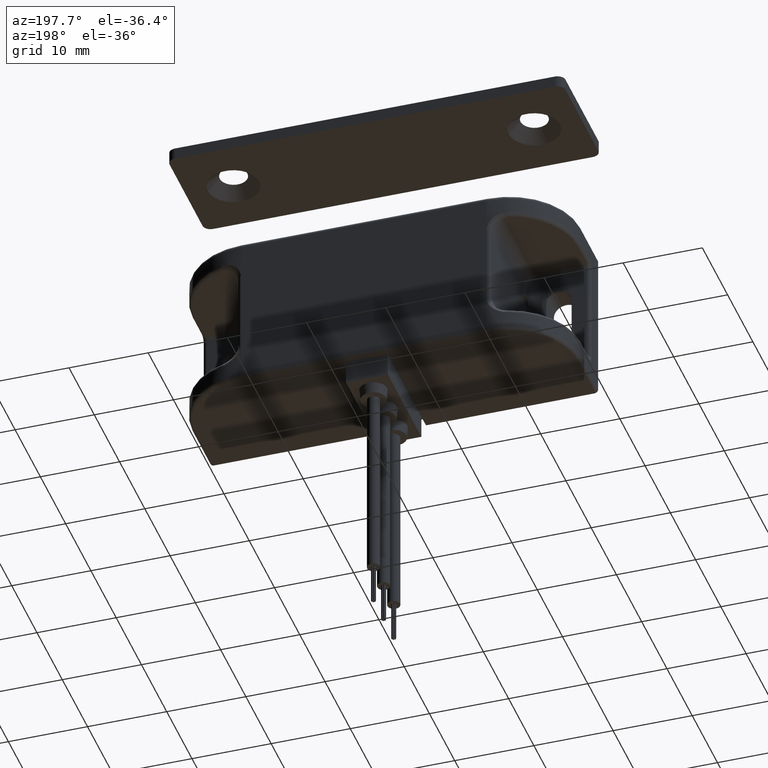
[diagram: clean part render]
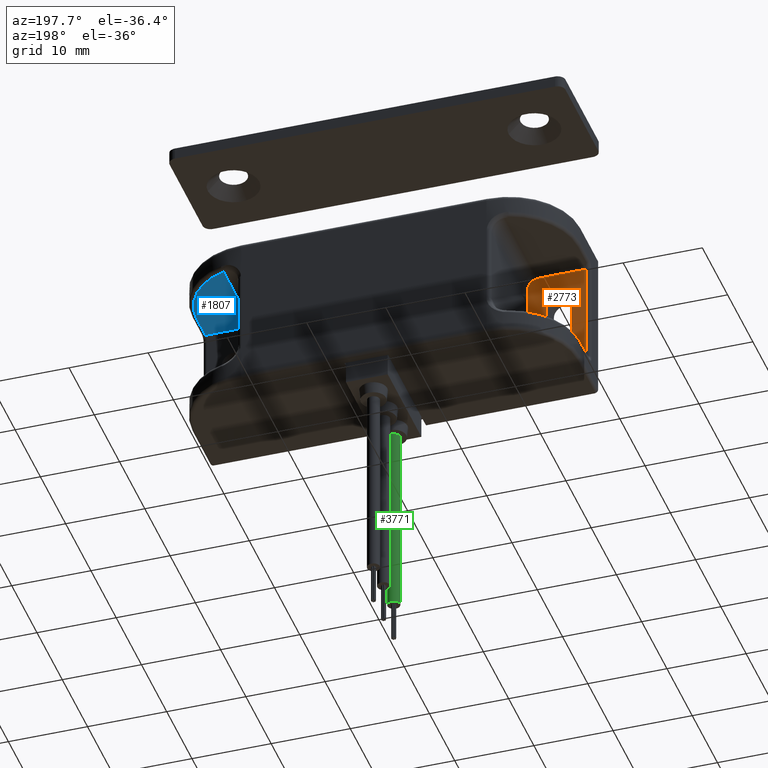
[diagram: same view with three faces highlighted in distinct colors, each labeled with its STEP entity id]
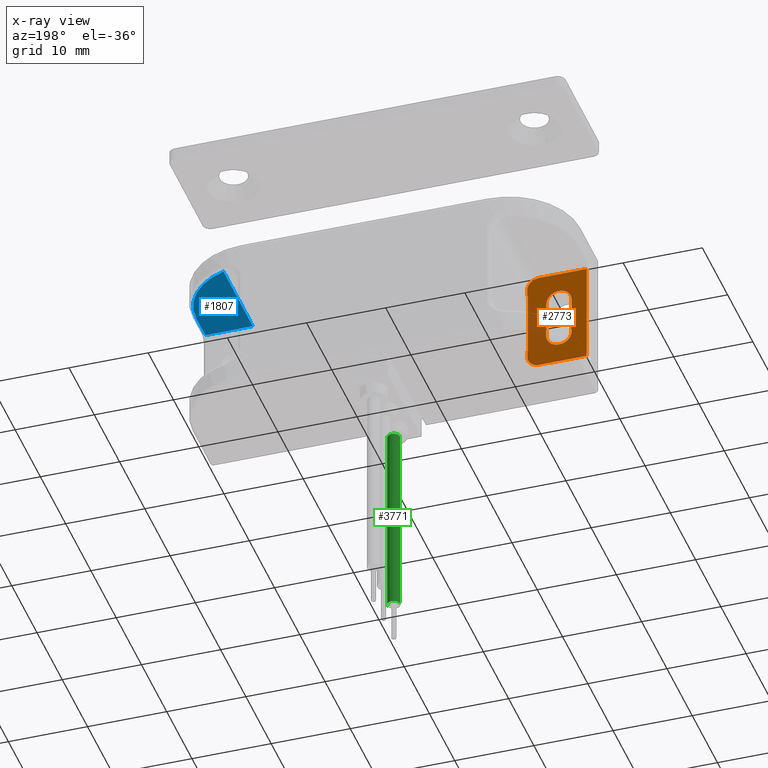
[diagram: x-ray of the same camera — body ghosted, the three highlighted faces saturated]
A machine part, auxiliary view with three faces highlighted in distinct colors.
The next image is the same camera in x-ray (body ghosted, the three faces saturated) — at least one of them is partly hidden behind the body in this view.
Their STEP definitions:

[orange] entity #2773 — the highlighted planar face has unit normal (0, 1, 0).
#72 = CARTESIAN_POINT ( 'NONE',  ( -24.50000000000001100, 2.999999999999999100, -6.500000000000000900 ) ) ;
#246 = EDGE_CURVE ( 'NONE', #6252, #2379, #4276, .T. ) ;
#266 = VECTOR ( 'NONE', #4255, 1000.000000000000000 ) ;
#316 = VERTEX_POINT ( 'NONE', #2782 ) ;
#333 = CARTESIAN_POINT ( 'NONE',  ( -16.00000000000000000, 2.999999999999998700, -4.099999999999999600 ) ) ;
#349 = AXIS2_PLACEMENT_3D ( 'NONE', #4190, #1196, #4693 ) ;
#391 = CARTESIAN_POINT ( 'NONE',  ( -18.00000000000000400, 2.999999999999998700, 5.000000000000000000 ) ) ;
#439 = CIRCLE ( 'NONE', #349, 1.599999999999997200 ) ;
#503 = ORIENTED_EDGE ( 'NONE', *, *, #246, .T. ) ;
#621 = LINE ( 'NONE', #72, #3144 ) ;
#622 = CARTESIAN_POINT ( 'NONE',  ( -24.50000000000001100, 2.999999999999999100, -7.000000000000000000 ) ) ;
#679 = CARTESIAN_POINT ( 'NONE',  ( -22.09999999999999400, 2.999999999999999100, -2.399999999999999500 ) ) ;
#691 = CARTESIAN_POINT ( 'NONE',  ( -18.89999999999999900, 2.999999999999998700, 2.399999999999999900 ) ) ;
#760 = FACE_OUTER_BOUND ( 'NONE', #3236, .T. ) ;
#772 = CIRCLE ( 'NONE', #6388, 1.500000000000001300 ) ;
#880 = CARTESIAN_POINT ( 'NONE',  ( -18.00000000000000400, 2.999999999999998700, -5.000000000000000000 ) ) ;
#908 = DIRECTION ( 'NONE',  ( -1.000000000000000000, 0.0000000000000000000, 0.0000000000000000000 ) ) ;
#920 = VECTOR ( 'NONE', #2109, 1000.000000000000000 ) ;
#923 = AXIS2_PLACEMENT_3D ( 'NONE', #4462, #1479, #4968 ) ;
#996 = ORIENTED_EDGE ( 'NONE', *, *, #2695, .F. ) ;
#1107 = EDGE_CURVE ( 'NONE', #2442, #5303, #5289, .T. ) ;
#1118 = LINE ( 'NONE', #1330, #6314 ) ;
#1124 = PLANE ( 'NONE',  #5885 ) ;
#1196 = DIRECTION ( 'NONE',  ( -5.102127870520014400E-017, -1.000000000000000000, -0.0000000000000000000 ) ) ;
#1249 = CARTESIAN_POINT ( 'NONE',  ( -16.50000000000000000, 2.999999999999998700, 5.000000000000000000 ) ) ;
#1330 = CARTESIAN_POINT ( 'NONE',  ( -16.50000000000000000, 2.999999999999998700, -5.000000000000000000 ) ) ;
#1428 = ORIENTED_EDGE ( 'NONE', *, *, #4904, .T. ) ;
#1479 = DIRECTION ( 'NONE',  ( -5.102127870520014400E-017, -1.000000000000000000, -0.0000000000000000000 ) ) ;
#1489 = ORIENTED_EDGE ( 'NONE', *, *, #3746, .T. ) ;
#1587 = EDGE_CURVE ( 'NONE', #1715, #2229, #1893, .T. ) ;
#1640 = CARTESIAN_POINT ( 'NONE',  ( -18.89999999999999500, 2.999999999999998700, -2.399999999999999500 ) ) ;
#1645 = DIRECTION ( 'NONE',  ( 5.102127870520014400E-017, 1.000000000000000000, 0.0000000000000000000 ) ) ;
#1687 = DIRECTION ( 'NONE',  ( 0.0000000000000000000, -0.0000000000000000000, -1.000000000000000000 ) ) ;
#1715 = VERTEX_POINT ( 'NONE', #6386 ) ;
#1750 = ORIENTED_EDGE ( 'NONE', *, *, #1587, .T. ) ;
#1757 = ORIENTED_EDGE ( 'NONE', *, *, #5649, .T. ) ;
#1859 = EDGE_CURVE ( 'NONE', #4123, #316, #772, .T. ) ;
#1861 = EDGE_CURVE ( 'NONE', #316, #4927, #621, .T. ) ;
#1893 = LINE ( 'NONE', #679, #3070 ) ;
#1910 = DIRECTION ( 'NONE',  ( -1.000000000000000000, 0.0000000000000000000, 0.0000000000000000000 ) ) ;
#2013 = LINE ( 'NONE', #4175, #3190 ) ;
#2109 = DIRECTION ( 'NONE',  ( -0.0000000000000000000, -0.0000000000000000000, 1.000000000000000000 ) ) ;
#2110 = CARTESIAN_POINT ( 'NONE',  ( -18.89999999999999500, 2.999999999999998700, -2.399999999999999500 ) ) ;
#2124 = ORIENTED_EDGE ( 'NONE', *, *, #4538, .T. ) ;
#2145 = CARTESIAN_POINT ( 'NONE',  ( -16.60000000000000100, 2.999999999999998700, -4.099999999999999600 ) ) ;
#2229 = VERTEX_POINT ( 'NONE', #5601 ) ;
#2282 = LINE ( 'NONE', #5100, #920 ) ;
#2379 = VERTEX_POINT ( 'NONE', #691 ) ;
#2442 = VERTEX_POINT ( 'NONE', #1249 ) ;
#2445 = LINE ( 'NONE', #5596, #5085 ) ;
#2695 = EDGE_CURVE ( 'NONE', #5013, #5303, #2445, .T. ) ;
#2713 = EDGE_CURVE ( 'NONE', #3357, #5013, #2282, .T. ) ;
#2773 = ADVANCED_FACE ( 'NONE', ( #3300, #760 ), #1124, .T. ) ;
#2782 = CARTESIAN_POINT ( 'NONE',  ( -18.00000000000000400, 2.999999999999998700, -6.500000000000000900 ) ) ;
#2822 = VECTOR ( 'NONE', #5294, 1000.000000000000000 ) ;
#2852 = EDGE_CURVE ( 'NONE', #2379, #1715, #439, .T. ) ;
#2854 = ORIENTED_EDGE ( 'NONE', *, *, #1107, .T. ) ;
#2876 = DIRECTION ( 'NONE',  ( 1.000000000000000000, -0.0000000000000000000, -0.0000000000000000000 ) ) ;
#2979 = ORIENTED_EDGE ( 'NONE', *, *, #5402, .T. ) ;
#3016 = CIRCLE ( 'NONE', #4918, 1.500000000000001300 ) ;
#3035 = ORIENTED_EDGE ( 'NONE', *, *, #2713, .F. ) ;
#3067 = CARTESIAN_POINT ( 'NONE',  ( -16.50000000000000000, 2.999999999999998700, -5.000000000000000000 ) ) ;
#3070 = VECTOR ( 'NONE', #6228, 1000.000000000000000 ) ;
#3087 = DIRECTION ( 'NONE',  ( 1.000000000000000000, -0.0000000000000000000, -0.0000000000000000000 ) ) ;
#3144 = VECTOR ( 'NONE', #4453, 1000.000000000000000 ) ;
#3188 = VECTOR ( 'NONE', #2876, 1000.000000000000000 ) ;
#3190 = VECTOR ( 'NONE', #5708, 1000.000000000000000 ) ;
#3236 = EDGE_LOOP ( 'NONE', ( #2979, #2854, #996, #3035, #1428, #4451, #5545, #5362, #1489, #1757 ) ) ;
#3300 = FACE_BOUND ( 'NONE', #4635, .T. ) ;
#3352 = CARTESIAN_POINT ( 'NONE',  ( -16.50000000000000000, 2.999999999999998700, -4.099999999999999600 ) ) ;
#3357 = VERTEX_POINT ( 'NONE', #2145 ) ;
#3445 = DIRECTION ( 'NONE',  ( 5.102127870520014400E-017, 1.000000000000000000, 0.0000000000000000000 ) ) ;
#3746 = EDGE_CURVE ( 'NONE', #4927, #5124, #5472, .T. ) ;
#3890 = CIRCLE ( 'NONE', #923, 1.599999999999997200 ) ;
#3931 = DIRECTION ( 'NONE',  ( 5.102127870520014400E-017, 1.000000000000000000, 0.0000000000000000000 ) ) ;
#3965 = VECTOR ( 'NONE', #1687, 1000.000000000000000 ) ;
#4123 = VERTEX_POINT ( 'NONE', #3067 ) ;
#4175 = CARTESIAN_POINT ( 'NONE',  ( -18.00000000000000400, 2.999999999999998700, 6.500000000000000900 ) ) ;
#4190 = CARTESIAN_POINT ( 'NONE',  ( -20.49999999999999600, 2.999999999999998700, 2.399999999999999900 ) ) ;
#4255 = DIRECTION ( 'NONE',  ( 0.0000000000000000000, 0.0000000000000000000, 1.000000000000000000 ) ) ;
#4276 = LINE ( 'NONE', #2110, #266 ) ;
#4323 = CARTESIAN_POINT ( 'NONE',  ( -16.50000000000000000, 2.999999999999998700, 4.099999999999999600 ) ) ;
#4327 = ORIENTED_EDGE ( 'NONE', *, *, #2852, .T. ) ;
#4386 = VERTEX_POINT ( 'NONE', #3352 ) ;
#4450 = CARTESIAN_POINT ( 'NONE',  ( -16.50000000000000000, 2.999999999999998700, 4.100000000000000500 ) ) ;
#4451 = ORIENTED_EDGE ( 'NONE', *, *, #6481, .T. ) ;
#4453 = DIRECTION ( 'NONE',  ( -1.000000000000000000, 5.102127870520014400E-017, 0.0000000000000000000 ) ) ;
#4462 = CARTESIAN_POINT ( 'NONE',  ( -20.49999999999999600, 2.999999999999998700, -2.399999999999999500 ) ) ;
#4521 = VERTEX_POINT ( 'NONE', #4944 ) ;
#4538 = EDGE_CURVE ( 'NONE', #2229, #6252, #3890, .T. ) ;
#4635 = EDGE_LOOP ( 'NONE', ( #1750, #2124, #503, #4327 ) ) ;
#4693 = DIRECTION ( 'NONE',  ( 1.000000000000000000, 0.0000000000000000000, 0.0000000000000000000 ) ) ;
#4818 = DIRECTION ( 'NONE',  ( 0.0000000000000000000, -0.0000000000000000000, -1.000000000000000000 ) ) ;
#4904 = EDGE_CURVE ( 'NONE', #3357, #4386, #5696, .T. ) ;
#4918 = AXIS2_PLACEMENT_3D ( 'NONE', #391, #3931, #908 ) ;
#4927 = VERTEX_POINT ( 'NONE', #5891 ) ;
#4944 = CARTESIAN_POINT ( 'NONE',  ( -18.00000000000000400, 2.999999999999998700, 6.500000000000000900 ) ) ;
#4968 = DIRECTION ( 'NONE',  ( 1.000000000000000000, 0.0000000000000000000, 0.0000000000000000000 ) ) ;
#5013 = VERTEX_POINT ( 'NONE', #5970 ) ;
#5085 = VECTOR ( 'NONE', #3087, 1000.000000000000000 ) ;
#5100 = CARTESIAN_POINT ( 'NONE',  ( -16.60000000000000100, 2.999999999999998700, -4.099999999999999600 ) ) ;
#5124 = VERTEX_POINT ( 'NONE', #5629 ) ;
#5141 = DIRECTION ( 'NONE',  ( -1.000000000000000000, 5.102127870520014400E-017, 0.0000000000000000000 ) ) ;
#5289 = LINE ( 'NONE', #4450, #3965 ) ;
#5294 = DIRECTION ( 'NONE',  ( -0.0000000000000000000, 0.0000000000000000000, 1.000000000000000000 ) ) ;
#5303 = VERTEX_POINT ( 'NONE', #4323 ) ;
#5362 = ORIENTED_EDGE ( 'NONE', *, *, #1861, .T. ) ;
#5402 = EDGE_CURVE ( 'NONE', #4521, #2442, #3016, .T. ) ;
#5472 = LINE ( 'NONE', #6298, #2822 ) ;
#5545 = ORIENTED_EDGE ( 'NONE', *, *, #1859, .T. ) ;
#5596 = CARTESIAN_POINT ( 'NONE',  ( -16.00000000000000000, 2.999999999999998700, 4.099999999999999600 ) ) ;
#5601 = CARTESIAN_POINT ( 'NONE',  ( -22.09999999999999400, 2.999999999999999100, -2.400000000000000400 ) ) ;
#5629 = CARTESIAN_POINT ( 'NONE',  ( -23.99999999999998900, 2.999999999999999100, 6.500000000000000900 ) ) ;
#5649 = EDGE_CURVE ( 'NONE', #5124, #4521, #2013, .T. ) ;
#5696 = LINE ( 'NONE', #333, #3188 ) ;
#5708 = DIRECTION ( 'NONE',  ( 1.000000000000000000, -5.102127870520014400E-017, 0.0000000000000000000 ) ) ;
#5885 = AXIS2_PLACEMENT_3D ( 'NONE', #622, #1645, #5141 ) ;
#5891 = CARTESIAN_POINT ( 'NONE',  ( -23.99999999999998900, 2.999999999999999100, -6.500000000000000900 ) ) ;
#5970 = CARTESIAN_POINT ( 'NONE',  ( -16.60000000000000100, 2.999999999999998700, 4.099999999999999600 ) ) ;
#6228 = DIRECTION ( 'NONE',  ( 0.0000000000000000000, -0.0000000000000000000, -1.000000000000000000 ) ) ;
#6252 = VERTEX_POINT ( 'NONE', #1640 ) ;
#6298 = CARTESIAN_POINT ( 'NONE',  ( -23.99999999999998900, 2.999999999999999100, 7.000000000000000000 ) ) ;
#6314 = VECTOR ( 'NONE', #4818, 1000.000000000000000 ) ;
#6386 = CARTESIAN_POINT ( 'NONE',  ( -22.09999999999999400, 2.999999999999999100, 2.399999999999999000 ) ) ;
#6388 = AXIS2_PLACEMENT_3D ( 'NONE', #880, #3445, #1910 ) ;
#6481 = EDGE_CURVE ( 'NONE', #4386, #4123, #1118, .T. ) ;

[blue] entity #1807 — the highlighted planar face has unit normal (0, 0, -1).
#62 = ORIENTED_EDGE ( 'NONE', *, *, #2377, .T. ) ;
#177 = DIRECTION ( 'NONE',  ( -1.000000000000000000, 0.0000000000000000000, 0.0000000000000000000 ) ) ;
#255 = VERTEX_POINT ( 'NONE', #1353 ) ;
#432 = ORIENTED_EDGE ( 'NONE', *, *, #6449, .T. ) ;
#437 = DIRECTION ( 'NONE',  ( 0.0000000000000000000, 0.0000000000000000000, -1.000000000000000000 ) ) ;
#618 = AXIS2_PLACEMENT_3D ( 'NONE', #6206, #3211, #177 ) ;
#734 = LINE ( 'NONE', #4002, #2091 ) ;
#780 = DIRECTION ( 'NONE',  ( -0.0000000000000000000, 1.000000000000000000, -0.0000000000000000000 ) ) ;
#782 = ORIENTED_EDGE ( 'NONE', *, *, #2362, .T. ) ;
#1103 = EDGE_LOOP ( 'NONE', ( #432, #782, #1904, #62 ) ) ;
#1144 = VERTEX_POINT ( 'NONE', #4713 ) ;
#1353 = CARTESIAN_POINT ( 'NONE',  ( 24.00000000000001100, 3.499999999999999100, 7.000000000000000000 ) ) ;
#1633 = VERTEX_POINT ( 'NONE', #2159 ) ;
#1648 = CIRCLE ( 'NONE', #618, 8.499999999999998200 ) ;
#1714 = DIRECTION ( 'NONE',  ( -1.000000000000000000, -5.102127870520014400E-017, -0.0000000000000000000 ) ) ;
#1807 = ADVANCED_FACE ( 'NONE', ( #4773 ), #4244, .T. ) ;
#1904 = ORIENTED_EDGE ( 'NONE', *, *, #4566, .T. ) ;
#2091 = VECTOR ( 'NONE', #4484, 1000.000000000000000 ) ;
#2159 = CARTESIAN_POINT ( 'NONE',  ( 24.00000000000001100, 7.000000000000000900, 7.000000000000000000 ) ) ;
#2362 = EDGE_CURVE ( 'NONE', #3855, #1633, #1648, .T. ) ;
#2377 = EDGE_CURVE ( 'NONE', #255, #1144, #2981, .T. ) ;
#2981 = LINE ( 'NONE', #4697, #4150 ) ;
#3211 = DIRECTION ( 'NONE',  ( 0.0000000000000000000, -0.0000000000000000000, -1.000000000000000000 ) ) ;
#3802 = CARTESIAN_POINT ( 'NONE',  ( 18.00000000000000400, 0.0000000000000000000, 7.000000000000000000 ) ) ;
#3855 = VERTEX_POINT ( 'NONE', #5875 ) ;
#4002 = CARTESIAN_POINT ( 'NONE',  ( 24.00000000000001100, 2.999999999999999100, 7.000000000000000000 ) ) ;
#4109 = LINE ( 'NONE', #3802, #5277 ) ;
#4150 = VECTOR ( 'NONE', #1714, 1000.000000000000000 ) ;
#4244 = PLANE ( 'NONE',  #6045 ) ;
#4484 = DIRECTION ( 'NONE',  ( -0.0000000000000000000, -1.000000000000000000, -0.0000000000000000000 ) ) ;
#4566 = EDGE_CURVE ( 'NONE', #1633, #255, #734, .T. ) ;
#4697 = CARTESIAN_POINT ( 'NONE',  ( -1.785744754682004000E-016, 3.499999999999997800, 7.000000000000000000 ) ) ;
#4713 = CARTESIAN_POINT ( 'NONE',  ( 18.00000000000000400, 3.499999999999998700, 7.000000000000000000 ) ) ;
#4773 = FACE_OUTER_BOUND ( 'NONE', #1103, .T. ) ;
#5261 = CARTESIAN_POINT ( 'NONE',  ( 0.0000000000000000000, 0.0000000000000000000, 7.000000000000000000 ) ) ;
#5277 = VECTOR ( 'NONE', #780, 1000.000000000000000 ) ;
#5458 = DIRECTION ( 'NONE',  ( -1.000000000000000000, 0.0000000000000000000, -0.0000000000000000000 ) ) ;
#5875 = CARTESIAN_POINT ( 'NONE',  ( 18.00000000000000400, 15.12403840463596300, 7.000000000000000000 ) ) ;
#6045 = AXIS2_PLACEMENT_3D ( 'NONE', #5261, #437, #5458 ) ;
#6206 = CARTESIAN_POINT ( 'NONE',  ( 15.50000000000001200, 7.000000000000000900, 7.000000000000000000 ) ) ;
#6449 = EDGE_CURVE ( 'NONE', #1144, #3855, #4109, .T. ) ;

[green] entity #3771 — the highlighted cylindrical surface (edge-blend (fillet) strip) has radius 0.8 mm, axis along (0, 0, 1).
#76 = DIRECTION ( 'NONE',  ( 0.0000000000000000000, 0.0000000000000000000, -1.000000000000000000 ) ) ;
#147 = CIRCLE ( 'NONE', #2230, 0.8000000000000001600 ) ;
#185 = ORIENTED_EDGE ( 'NONE', *, *, #1913, .F. ) ;
#551 = CARTESIAN_POINT ( 'NONE',  ( -0.7999999999999992700, 2.650000000000000400, -30.15000000000000200 ) ) ;
#586 = DIRECTION ( 'NONE',  ( -1.000000000000000000, 0.0000000000000000000, 0.0000000000000000000 ) ) ;
#775 = CARTESIAN_POINT ( 'NONE',  ( 8.673617379884035500E-016, 2.650000000000000400, -30.15000000000000200 ) ) ;
#1005 = CARTESIAN_POINT ( 'NONE',  ( -0.7999999999999992700, 2.650000000000000400, -5.150000000000000400 ) ) ;
#1483 = VERTEX_POINT ( 'NONE', #3658 ) ;
#1485 = DIRECTION ( 'NONE',  ( 0.0000000000000000000, 0.0000000000000000000, -1.000000000000000000 ) ) ;
#1824 = VERTEX_POINT ( 'NONE', #3551 ) ;
#1858 = ORIENTED_EDGE ( 'NONE', *, *, #3157, .T. ) ;
#1913 = EDGE_CURVE ( 'NONE', #1824, #1483, #147, .T. ) ;
#2230 = AXIS2_PLACEMENT_3D ( 'NONE', #775, #76, #586 ) ;
#2431 = DIRECTION ( 'NONE',  ( -0.0000000000000000000, -0.0000000000000000000, 1.000000000000000000 ) ) ;
#2823 = DIRECTION ( 'NONE',  ( 1.000000000000000000, 0.0000000000000000000, 0.0000000000000000000 ) ) ;
#2941 = AXIS2_PLACEMENT_3D ( 'NONE', #4466, #1485, #4978 ) ;
#3157 = EDGE_CURVE ( 'NONE', #4587, #3647, #4756, .T. ) ;
#3176 = VECTOR ( 'NONE', #2431, 1000.000000000000000 ) ;
#3468 = EDGE_CURVE ( 'NONE', #1824, #4587, #4357, .T. ) ;
#3551 = CARTESIAN_POINT ( 'NONE',  ( -0.7999999999999992700, 2.650000000000000400, -30.15000000000000200 ) ) ;
#3571 = DIRECTION ( 'NONE',  ( -0.0000000000000000000, -0.0000000000000000000, 1.000000000000000000 ) ) ;
#3647 = VERTEX_POINT ( 'NONE', #6218 ) ;
#3658 = CARTESIAN_POINT ( 'NONE',  ( 0.8000000000000010400, 2.650000000000000400, -30.15000000000000200 ) ) ;
#3771 = ADVANCED_FACE ( 'NONE', ( #5308 ), #6501, .T. ) ;
#3811 = CARTESIAN_POINT ( 'NONE',  ( 8.673617379884035500E-016, 2.650000000000000400, -30.15000000000000200 ) ) ;
#4054 = ORIENTED_EDGE ( 'NONE', *, *, #3468, .T. ) ;
#4298 = DIRECTION ( 'NONE',  ( -0.0000000000000000000, -0.0000000000000000000, 1.000000000000000000 ) ) ;
#4329 = LINE ( 'NONE', #5419, #3176 ) ;
#4357 = LINE ( 'NONE', #551, #5558 ) ;
#4466 = CARTESIAN_POINT ( 'NONE',  ( 8.673617379884035500E-016, 2.650000000000000400, -5.150000000000000400 ) ) ;
#4587 = VERTEX_POINT ( 'NONE', #1005 ) ;
#4756 = CIRCLE ( 'NONE', #2941, 0.8000000000000001600 ) ;
#4978 = DIRECTION ( 'NONE',  ( -1.000000000000000000, 0.0000000000000000000, 0.0000000000000000000 ) ) ;
#5154 = EDGE_LOOP ( 'NONE', ( #185, #4054, #1858, #6015 ) ) ;
#5308 = FACE_OUTER_BOUND ( 'NONE', #5154, .T. ) ;
#5381 = EDGE_CURVE ( 'NONE', #1483, #3647, #4329, .T. ) ;
#5419 = CARTESIAN_POINT ( 'NONE',  ( 0.8000000000000010400, 2.650000000000000400, -30.15000000000000200 ) ) ;
#5558 = VECTOR ( 'NONE', #3571, 1000.000000000000000 ) ;
#6015 = ORIENTED_EDGE ( 'NONE', *, *, #5381, .F. ) ;
#6143 = AXIS2_PLACEMENT_3D ( 'NONE', #3811, #4298, #2823 ) ;
#6218 = CARTESIAN_POINT ( 'NONE',  ( 0.8000000000000010400, 2.650000000000000400, -5.150000000000000400 ) ) ;
#6501 = CYLINDRICAL_SURFACE ( 'NONE', #6143, 0.8000000000000001600 ) ;